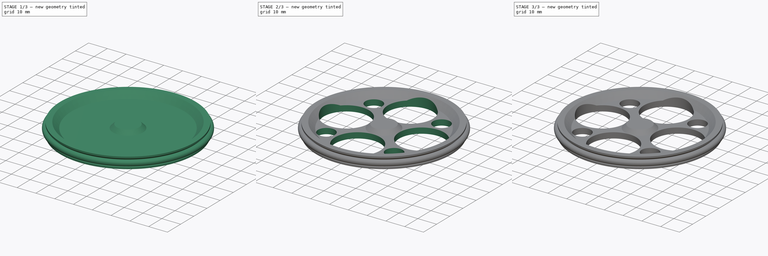
[diagram: build sequence overview — one tinted view per stage of 3, left to right]
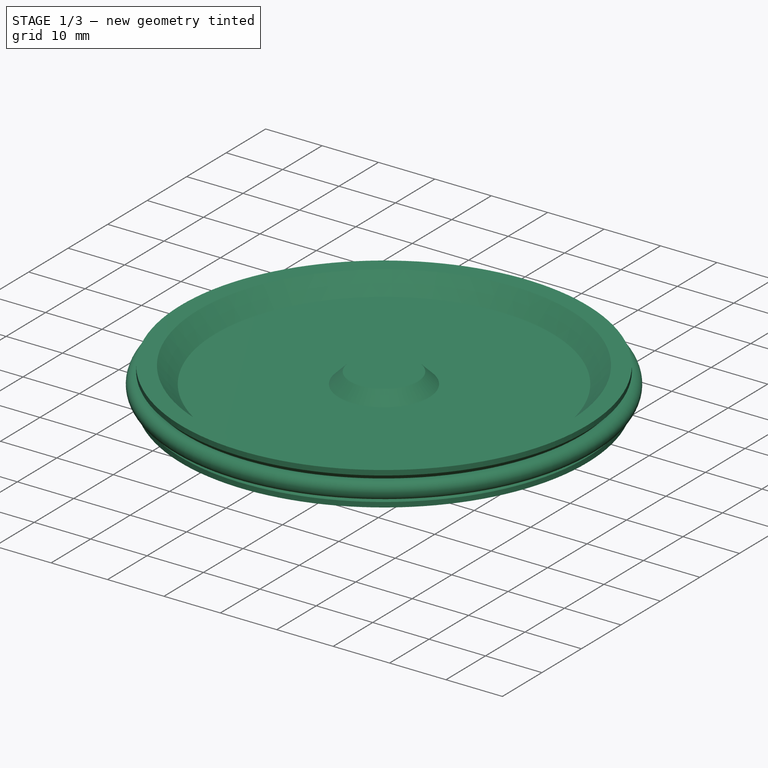
[diagram: stage 1 of 3 — iso view after this stage's code; geometry added in this stage tinted green]
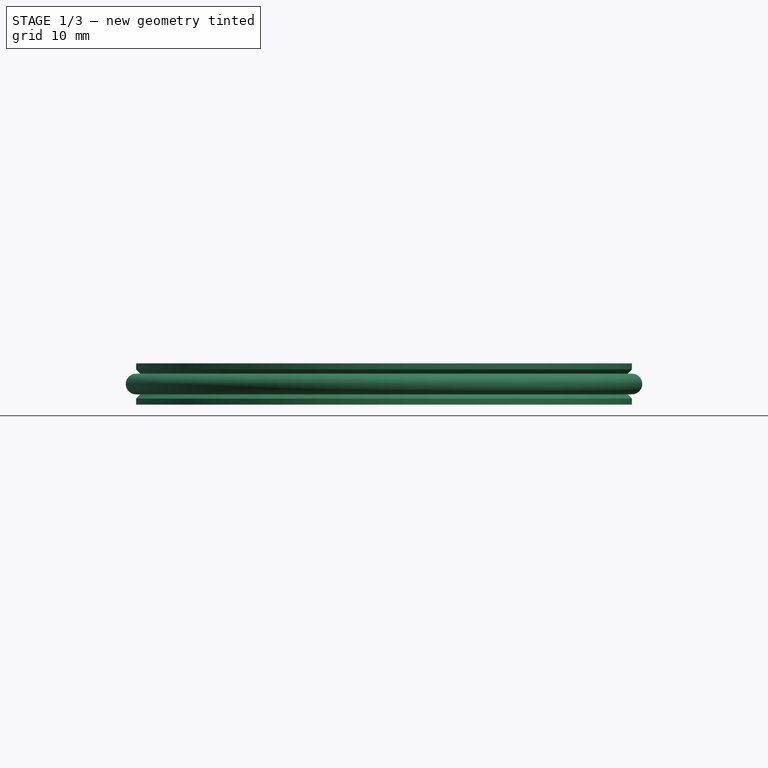
[diagram: stage 1 of 3 — front view after this stage's code; geometry added in this stage tinted green]
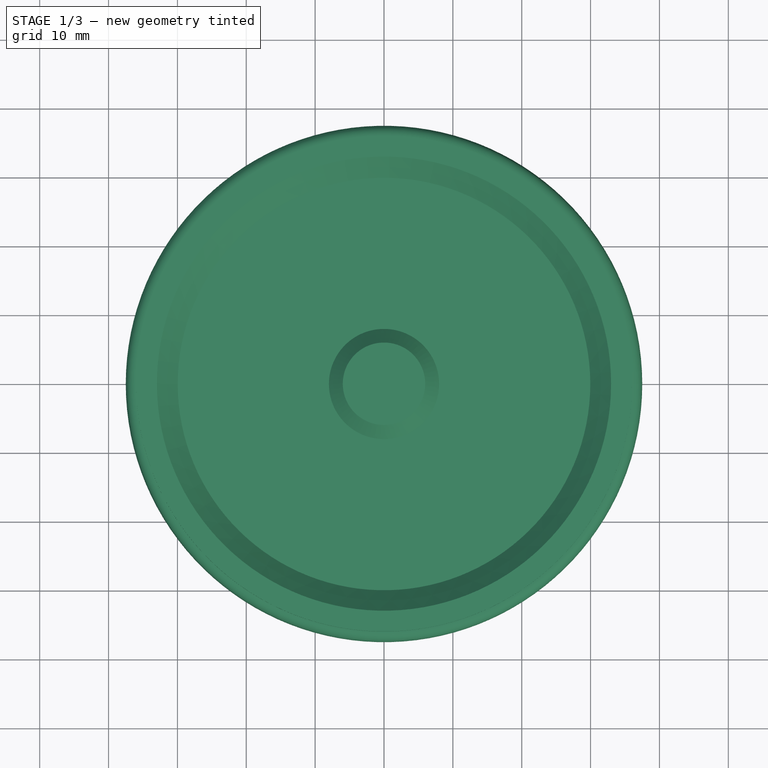
[diagram: stage 1 of 3 — top view after this stage's code; geometry added in this stage tinted green]
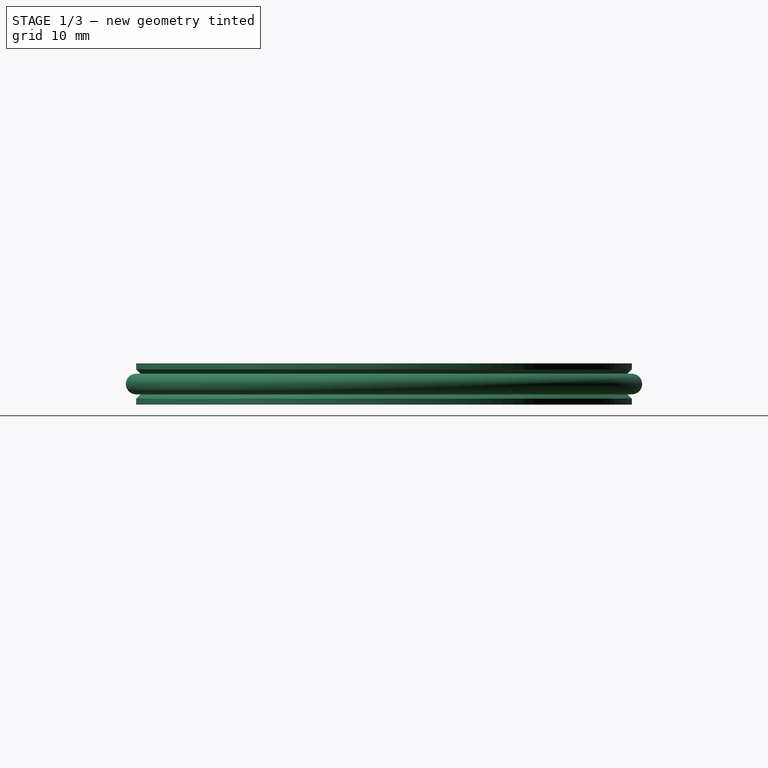
[diagram: stage 1 of 3 — right view after this stage's code; geometry added in this stage tinted green]
FCSTD DOCUMENT  (FreeCAD 0.14R3692 (Git))
Label: Wheel
License: CC-BY 3.0
LicenseURL: http://creativecommons.org/licenses/by/3.0/
objects: Sketcher::SketchObject×3, PartDesign::Pocket×2, PartDesign::Revolution×1, PartDesign::PolarPattern×1, PartDesign::Chamfer×1, Part::Feature×1, Part::Torus×1
note: 13 computed .brp shape members not serialized (recipe doc carries the construction recipe); baked Part::Feature solids carry a one-line shape summary decoded from their .brp

FEATURE [Sketcher::SketchObject] Sketch  label="SectionSketch"
  Placement = pos=(0,0,0) rot=(1,0,0;1.5708rad)
  sketch-geometry (19):
    g0: LineSegment StartX=0 StartY=2 StartZ=0 EndX=-5.98528 EndY=2 EndZ=0
    g1: LineSegment StartX=-5.98528 StartY=2 StartZ=0 EndX=-8 EndY=0 EndZ=0
    g2: LineSegment StartX=-8 StartY=0 StartZ=0 EndX=-29.9558 EndY=0 EndZ=0
    g3: LineSegment StartX=-29.9558 StartY=0 StartZ=0 EndX=-32.9779 EndY=3 EndZ=0
    g4: LineSegment StartX=-32.9779 StartY=3 StartZ=0 EndX=-36 EndY=3 EndZ=0
    g5: LineSegment StartX=-36 StartY=3 StartZ=0 EndX=-36 EndY=2.12132 EndZ=0
    g6: LineSegment StartX=-36 StartY=2.12132 StartZ=0 EndX=-33.8787 EndY=0 EndZ=0
    g7: LineSegment StartX=-33.8787 StartY=0 StartZ=0 EndX=-36 EndY=-2.12132 EndZ=0
    g8: LineSegment StartX=-36 StartY=-2.12132 StartZ=0 EndX=-36 EndY=-3 EndZ=0
    g9: LineSegment StartX=-36 StartY=-3 StartZ=0 EndX=0 EndY=-3 EndZ=0
    g10: LineSegment StartX=0 StartY=-3 StartZ=0 EndX=0 EndY=2 EndZ=0
    g11: Circle [constr] CenterX=0 CenterY=0 CenterZ=0 NormalX=0 NormalY=0 NormalZ=1 Radius=36
    g12: LineSegment [constr] StartX=0 StartY=0 StartZ=0 EndX=-21.182 EndY=21.182 EndZ=0
    g13: LineSegment [constr] StartX=0 StartY=18 StartZ=0 EndX=-18 EndY=18 EndZ=0
    g14: ArcOfCircle [constr] CenterX=0 CenterY=0 CenterZ=0 NormalX=0 NormalY=0 NormalZ=1 Radius=29.9558 StartAngle=2.35619 EndAngle=3.14159
    g15: LineSegment [constr] StartX=-29.9558 StartY=0 StartZ=0 EndX=-36 EndY=6 EndZ=0
    g16: LineSegment [constr] StartX=-36 StartY=0 StartZ=0 EndX=-36 EndY=6 EndZ=0
    g17: LineSegment [constr] StartX=-18.9779 StartY=6 StartZ=0 EndX=-18.9779 EndY=0 EndZ=0
    g18: LineSegment [constr] StartX=-8 StartY=0 StartZ=0 EndX=-1.95584 EndY=6 EndZ=0
  constraints (56):
    c: Coincident(g0,g1)
    c: Coincident(g1,g2)
    c: Coincident(g2,g3)
    c: Coincident(g3,g4)
    c: Coincident(g4,g5)
    c: Coincident(g5,g6)
    c: Coincident(g6,g7)
    c: Coincident(g7,g8)
    c: Coincident(g8,g9)
    c: Coincident(g9,g10)
    c: Coincident(g10,g0)
    c: Horizontal(g9)
    c: Horizontal(g2)
    c: Horizontal(g0)
    c: Horizontal(g4)
    c: Vertical(g10)
    c: Vertical(g5)
    c: Vertical(g8)
    c: DistanceY(g-1,g0) = 2
    c: PointOnObject(g1,g-1)
    c: DistanceX(g-1,g1) = -8
    c: PointOnObject(g9,g-2)
    c: DistanceY(g-1,g9) = -3
    c: DistanceX(g8,g9) = 36
    c: Coincident(g11,g-1)
    c: Radius(g11) = 36
    c: Coincident(g12,g-1)
    c: Horizontal(g13)
    c: PointOnObject(g13,g-2)
    c: PointOnObject(g13,g12)
    c: Angle(g-1,g12) = 2.35619
    c: DistanceX(g13) = -18
    c: Distance(g12,g13) = 4.5
    c: Coincident(g14,g-1)
    c: Coincident(g14,g12)
    c: PointOnObject(g14,g-1)
    c: Coincident(g2,g14)
    c: Angle(g-1,g6) = 2.35619
    c: Angle(g6,g7) = 1.5708
    c: Equal(g6,g7)
    c: PointOnObject(g6,g-1)
    c: Distance(g7) = 3
    c: Coincident(g15,g2)
    c: PointOnObject(g16,g11)
    c: PointOnObject(g16,g-1)
    c: Vertical(g16)
    c: Coincident(g16,g15)
    c: DistanceY(g16) = 6
    c: PointOnObject(g3,g15)
    c: Vertical(g17)
    c: Symmetric(g18,g2,g17)
    c: Coincident(g18,g1)
    c: Equal(g18,g15)
    c: Symmetric(g15,g18,g17)
    c: PointOnObject(g0,g18)
    c: Equal(g5,g8)
FEATURE [PartDesign::Revolution] Revolution
  Angle = 360
  Axis = (0,0,1)
  Base = (0,0,0)
  Placement = pos=(0,0,0) rot=(1,0,0;1.5708rad)
  ReferenceAxis = -> Sketch [V_Axis]
  Sketch = -> Sketch
FEATURE [Part::Feature] Chamfer001  label="Wheel_72mm"
  shape: bbox 72 x 72 x 6 mm, 30 faces (baked)
FEATURE [Part::Torus] Torus  label="ORing_72x3mm"
  Angle1 = -180
  Angle2 = 180
  Angle3 = 360
  Radius1 = 36
  Radius2 = 1.5
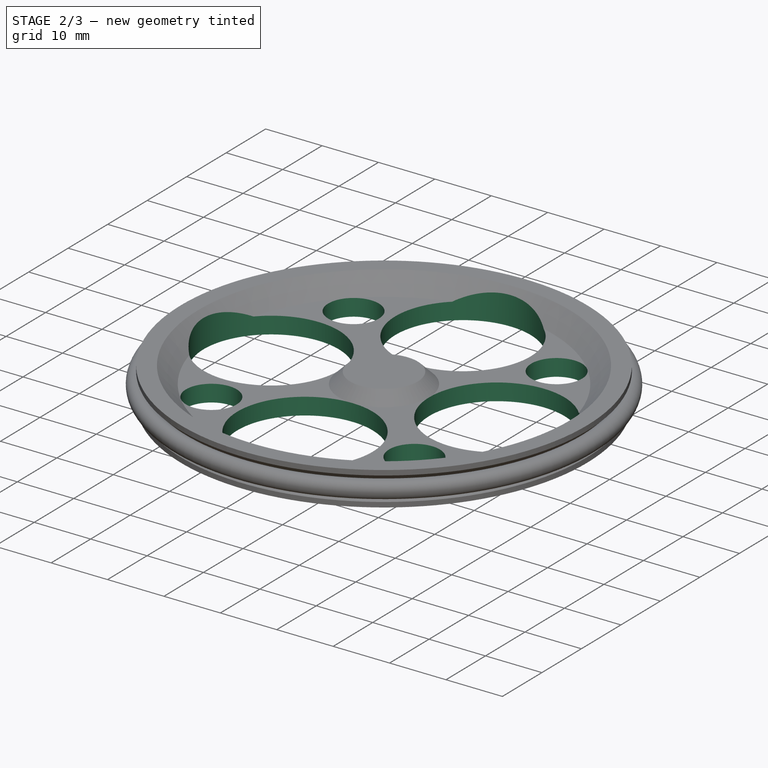
[diagram: stage 2 of 3 — iso view after this stage's code; geometry added in this stage tinted green]
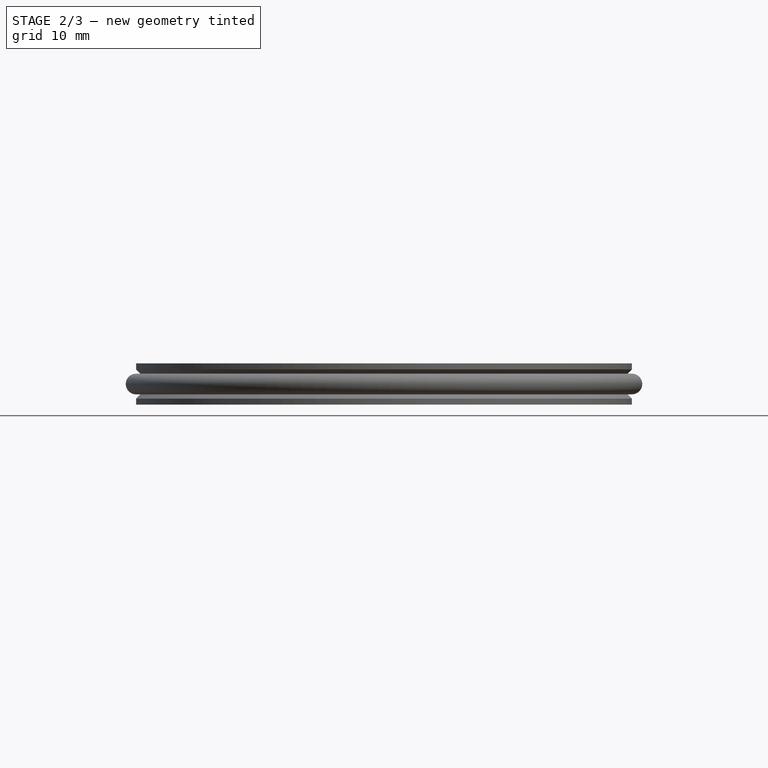
[diagram: stage 2 of 3 — front view after this stage's code; geometry added in this stage tinted green]
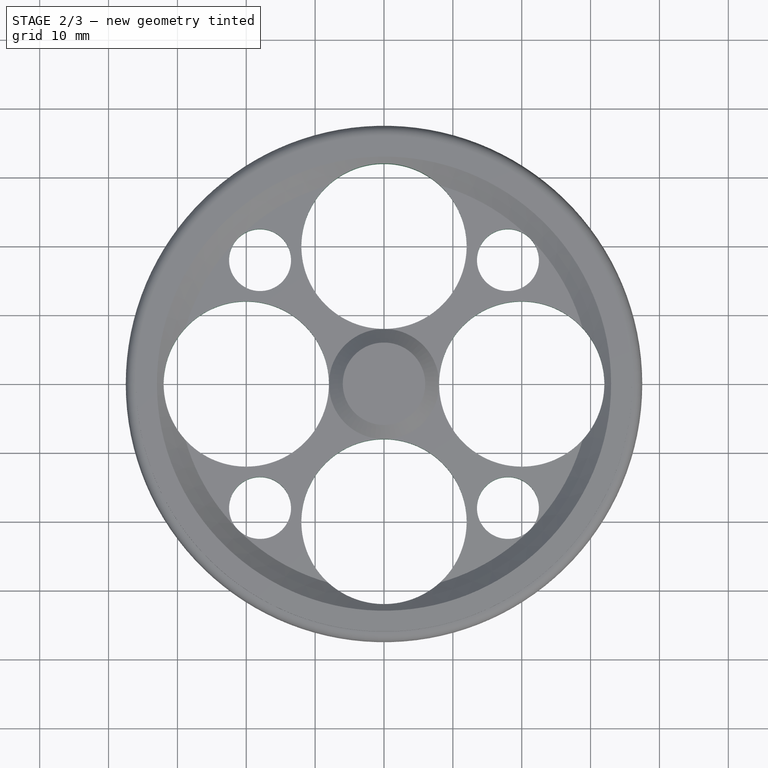
[diagram: stage 2 of 3 — top view after this stage's code; geometry added in this stage tinted green]
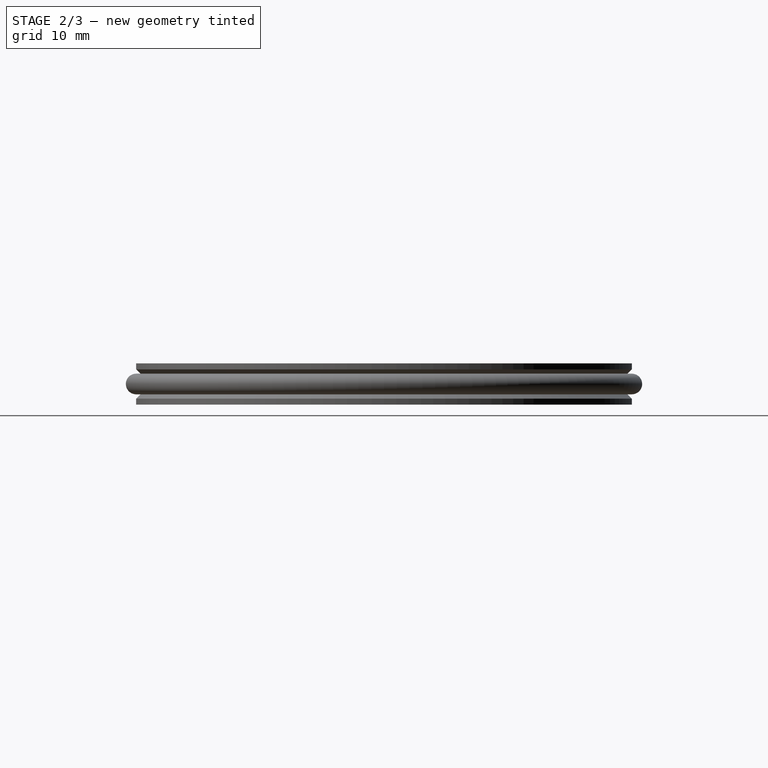
[diagram: stage 2 of 3 — right view after this stage's code; geometry added in this stage tinted green]
FEATURE [Sketcher::SketchObject] Sketch001  label="CutOutSketch"
  ExternalGeometry = -> [Revolution]
  Placement = pos=(0,0,-3) rot=(1,0,0;3.14159rad)
  Support = -> Revolution [Face10]
  sketch-geometry (2):
    g0: Circle CenterX=0 CenterY=20 CenterZ=0 NormalX=0 NormalY=0 NormalZ=1 Radius=12
    g1: Circle CenterX=18 CenterY=18 CenterZ=0 NormalX=0 NormalY=0 NormalZ=1 Radius=4.5
  constraints (6):
    c: Radius(g0) = 12
    c: PointOnObject(g0,g-2)
    c: DistanceY(g-1,g0) = 20
    c: DistanceY(g-1,g1) = 18
    c: DistanceX(g-1,g1) = 18
    c: Radius(g1) = 4.5
FEATURE [PartDesign::Pocket] Pocket  label="CutOut"
  Length = 5
  Placement = pos=(0,0,0) rot=(1,0,0;1.5708rad)
  Sketch = -> Sketch001
  Type = 1
FEATURE [PartDesign::PolarPattern] PolarPattern
  Angle = 360
  Axis = -> Sketch001 [N_Axis]
  Occurrences = 4
  Originals = -> [Pocket]
  Placement = pos=(0,0,0) rot=(1,0,0;1.5708rad)
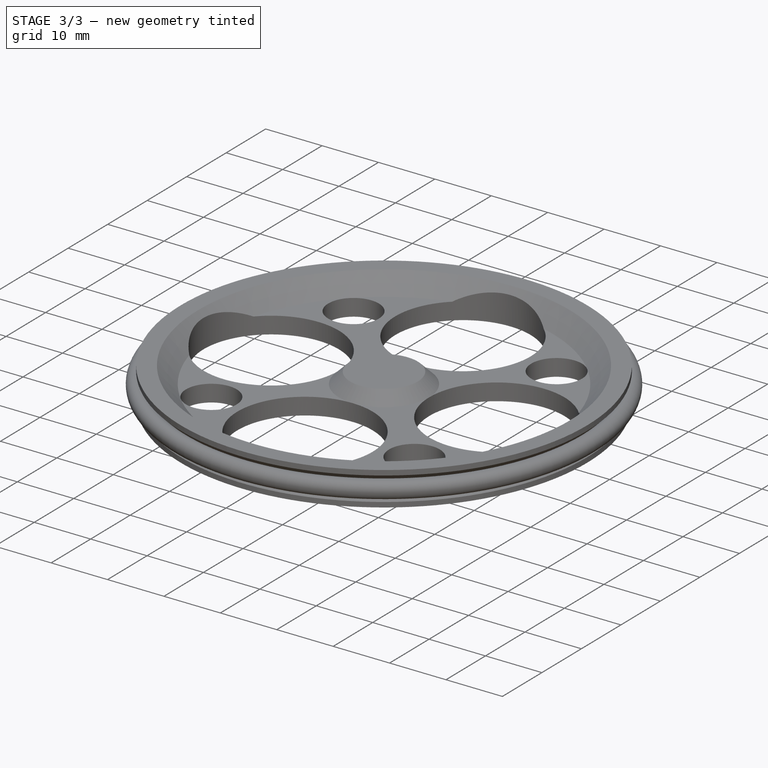
[diagram: stage 3 of 3 — iso view after this stage's code; geometry added in this stage tinted green]
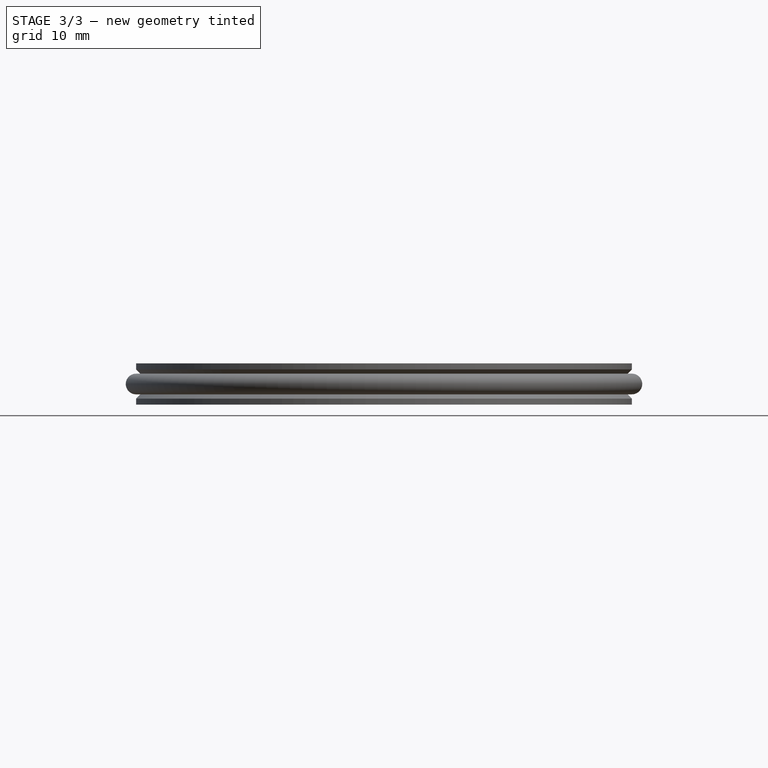
[diagram: stage 3 of 3 — front view after this stage's code; geometry added in this stage tinted green]
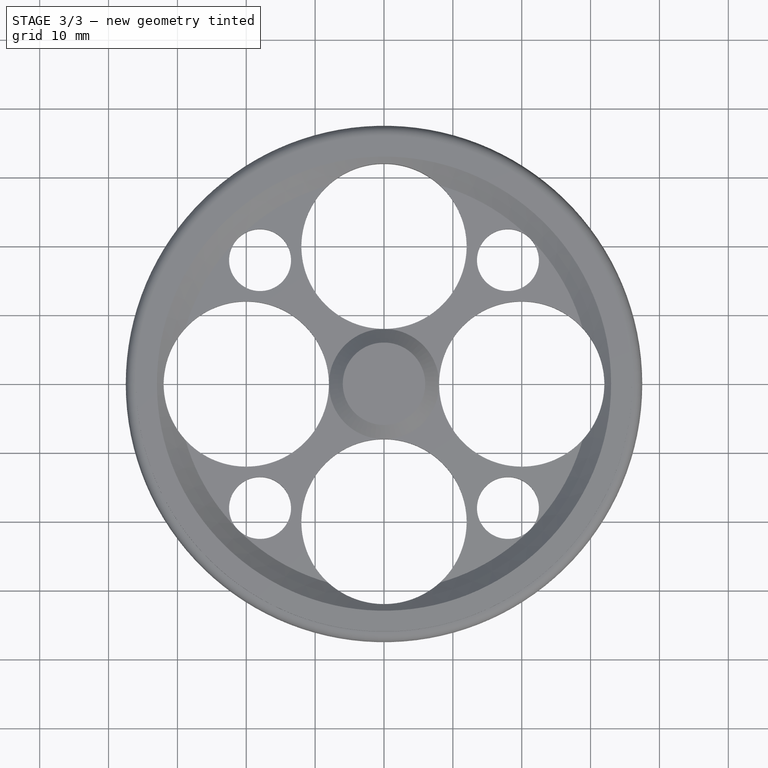
[diagram: stage 3 of 3 — top view after this stage's code; geometry added in this stage tinted green]
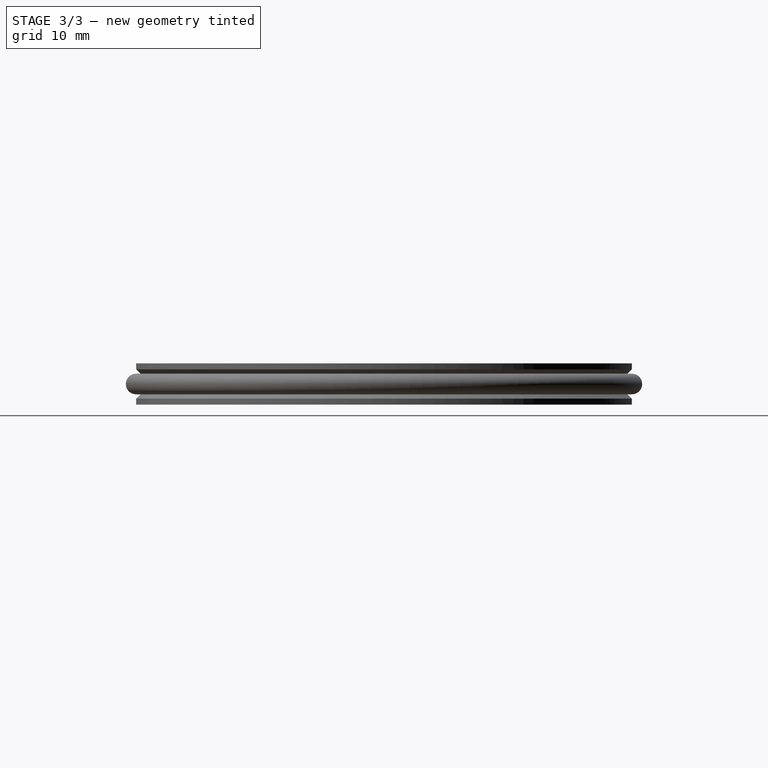
[diagram: stage 3 of 3 — right view after this stage's code; geometry added in this stage tinted green]
FEATURE [Sketcher::SketchObject] Sketch002  label="MotorShaftSketch"
  Placement = pos=(0,0,-3) rot=(1,0,0;3.14159rad)
  Support = -> PolarPattern [Face16]
  sketch-geometry (4):
    g0: ArcOfCircle CenterX=0 CenterY=0 CenterZ=0 NormalX=0 NormalY=0 NormalZ=1 Radius=2.5 StartAngle=2.49809 EndAngle=3.78509
    g1: LineSegment StartX=2 StartY=1.5 StartZ=0 EndX=-2 EndY=1.5 EndZ=0
    g2: LineSegment StartX=2 StartY=-1.5 StartZ=0 EndX=-2 EndY=-1.5 EndZ=0
    g3: ArcOfCircle CenterX=0 CenterY=0 CenterZ=0 NormalX=0 NormalY=0 NormalZ=1 Radius=2.5 StartAngle=5.63968 EndAngle=6.92669
  constraints (12):
    c: Radius(g0) = 2.5
    c: Coincident(g0,g-1)
    c: Horizontal(g1)
    c: Horizontal(g2)
    c: Coincident(g0,g1)
    c: Equal(g0,g3)
    c: Coincident(g0,g2)
    c: Coincident(g3,g2)
    c: Coincident(g0,g3)
    c: Coincident(g1,g3)
    c: DistanceY(g1,g2) = -3
    c: Symmetric(g0,g0,g-1)
FEATURE [PartDesign::Pocket] Pocket001  label="MotorShaft"
  Length = 4
  Placement = pos=(0,0,0) rot=(1,0,0;1.5708rad)
  Sketch = -> Sketch002
  Type = 0
FEATURE [PartDesign::Chamfer] Chamfer  label="MotorShaftChamfer"
  Base = -> Pocket001 [Edge67,Edge70,Edge69,Edge68]
  Placement = pos=(0,0,0) rot=(1,0,0;1.5708rad)
  Size = 0.5
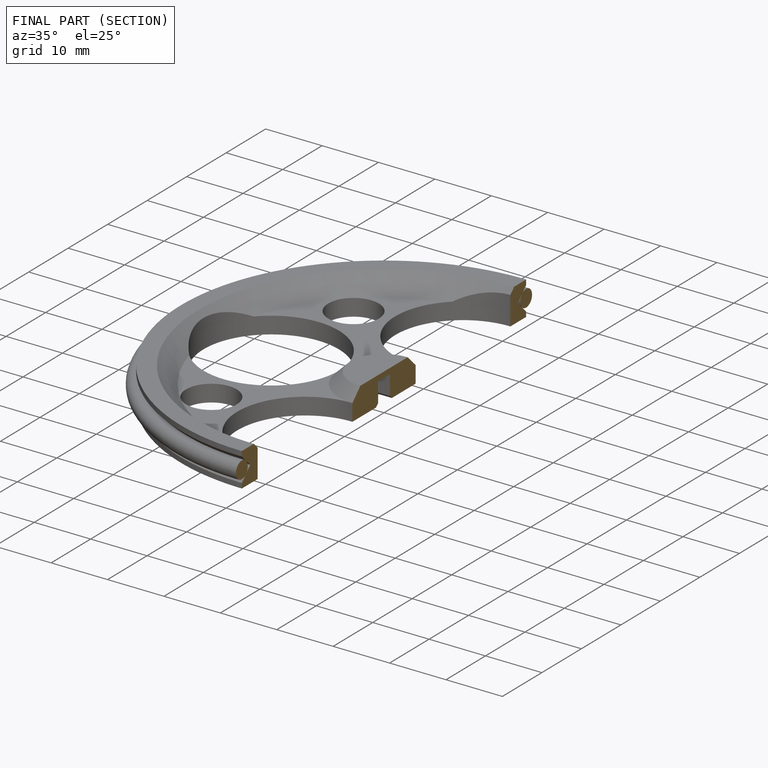
[diagram: finished part — half-section view (interior)]
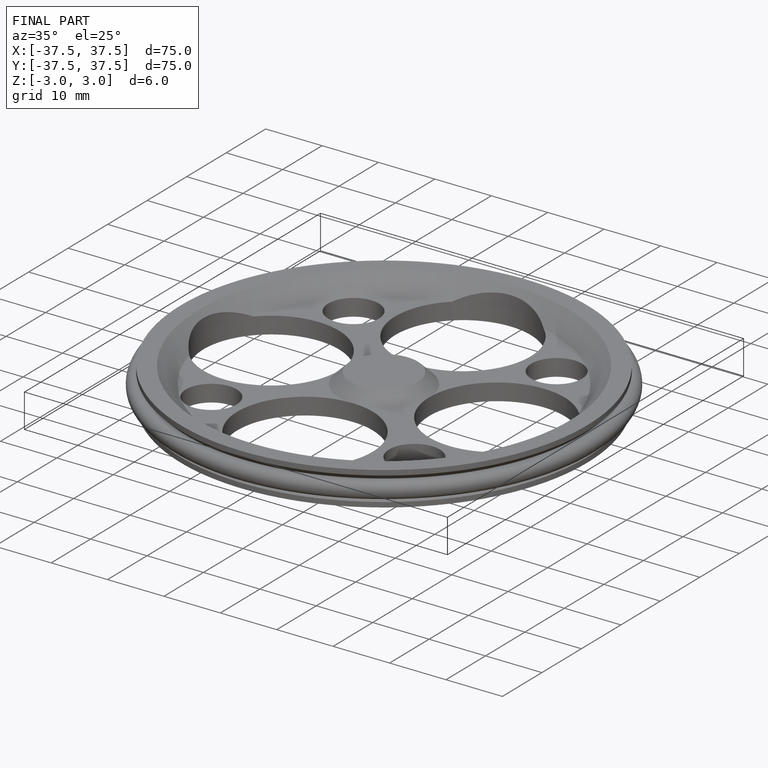
[diagram: finished part — iso view with bounding-box wireframe]
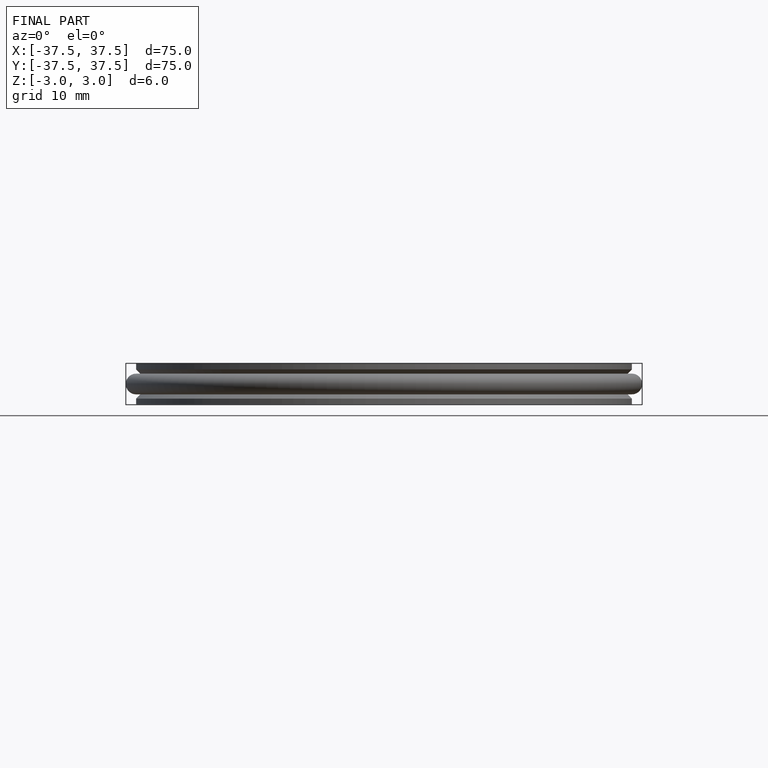
[diagram: finished part — front view with bounding-box wireframe]
